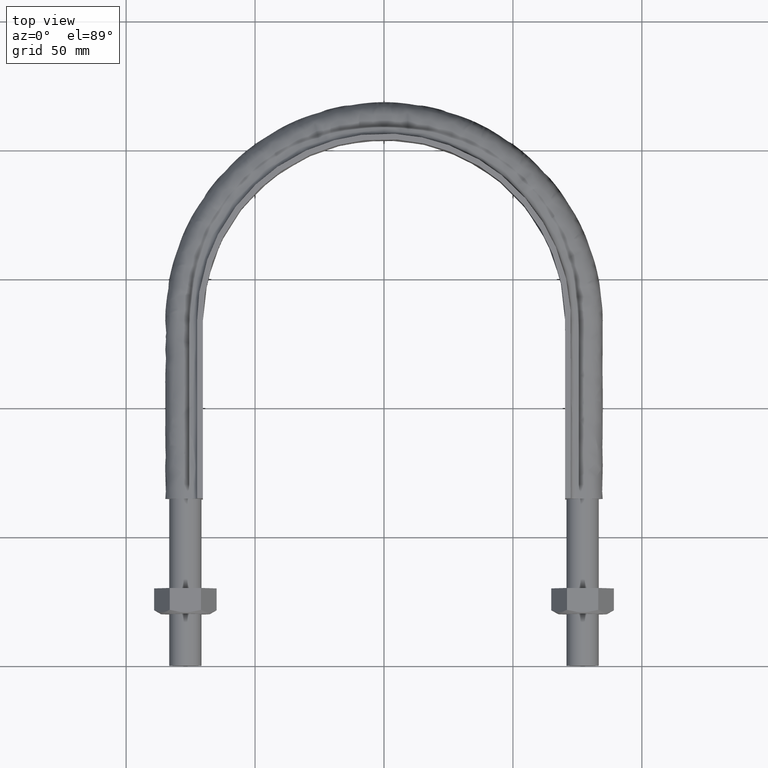
[diagram: clean part render]
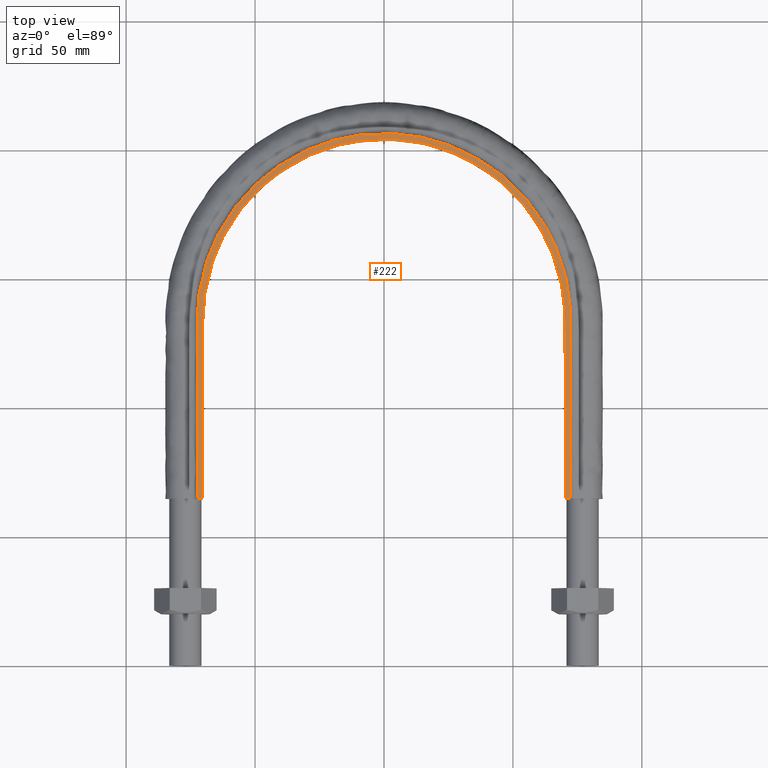
[diagram: same view with one face highlighted and labeled with its STEP entity id]
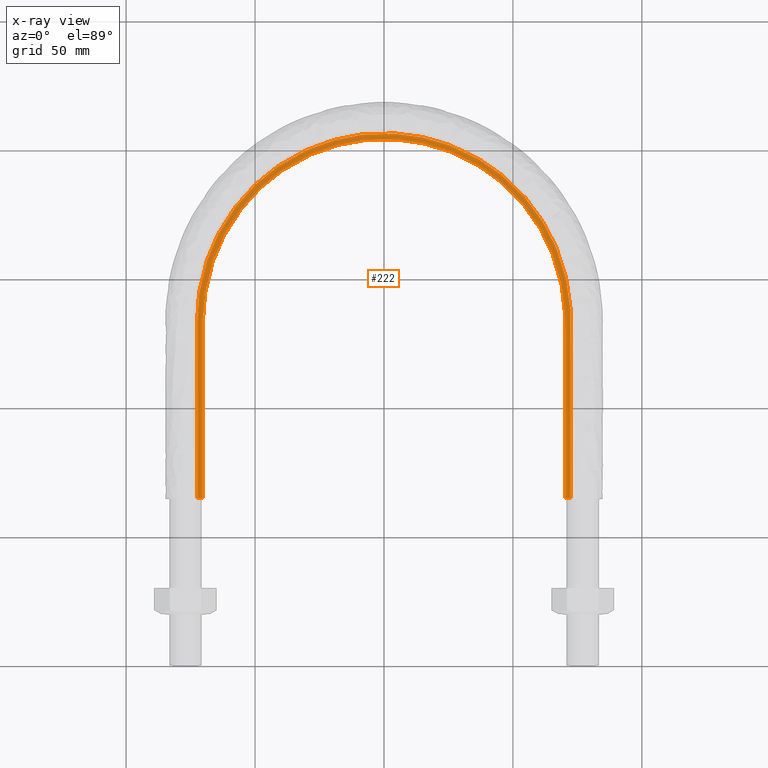
[diagram: x-ray of the same camera — body ghosted, the highlighted face saturated]
A machine part, top view. The second image highlights one B-rep face of the part: STEP entity #222.
The next image is the same camera in x-ray: the body ghosted, the highlighted face saturated — about 0% of this face is hidden behind the body in this view.
In plain terms, the highlighted planar face has unit normal (0, 0, 1).
Its self-contained STEP definition (entity closure, byte-faithful):
#222 = ADVANCED_FACE( '', ( #266 ), #267, .T. );
#266 = FACE_OUTER_BOUND( '', #538, .T. );
#267 = PLANE( '', #539 );
#538 = EDGE_LOOP( '', ( #1327, #1328, #1329, #1330 ) );
#539 = AXIS2_PLACEMENT_3D( '', #1331, #1332, #1333 );
#1327 = ORIENTED_EDGE( '', *, *, #1548, .T. );
#1328 = ORIENTED_EDGE( '', *, *, #1553, .T. );
#1329 = ORIENTED_EDGE( '', *, *, #1556, .T. );
#1330 = ORIENTED_EDGE( '', *, *, #1557, .F. );
#1331 = CARTESIAN_POINT( '', ( 100.000000000000, 264.710000000000, 15.0000000000000 ) );
#1332 = DIRECTION( '', ( 0.000000000000000, 0.000000000000000, 1.00000000000000 ) );
#1333 = DIRECTION( '', ( 1.00000000000000, 0.000000000000000, 0.000000000000000 ) );
#1548 = EDGE_CURVE( '', #1616, #1614, #1617, .T. );
#1553 = EDGE_CURVE( '', #1614, #1625, #1626, .T. );
#1556 = EDGE_CURVE( '', #1625, #1630, #1631, .T. );
#1557 = EDGE_CURVE( '', #1616, #1630, #1632, .T. );
#1614 = VERTEX_POINT( '', #1730 );
#1616 = VERTEX_POINT( '', #1733 );
#1617 = LINE( '', #1734, #1735 );
#1625 = VERTEX_POINT( '', #1794 );
#1626 = B_SPLINE_CURVE_WITH_KNOTS( '', 3, ( #1795, #1796, #1797, #1798, #1799, #1800, #1801, #1802, #1803, #1804, #1805, #1806, #1807, #1808, #1809, #1810 ), .UNSPECIFIED., .F., .F., ( 4, 3, 1, 1, 1, 1, 1, 1, 3, 4 ), ( -9.00000000000000, -8.00000000000000, -7.00000000000000, -6.00000000000000, -5.00000000000000, -4.00000000000000, -3.00000000000000, -2.00000000000000, -1.00000000000000, 0.000000000000000 ), .UNSPECIFIED. );
#1630 = VERTEX_POINT( '', #1830 );
#1631 = LINE( '', #1831, #1832 );
#1632 = B_SPLINE_CURVE_WITH_KNOTS( '', 3, ( #1833, #1834, #1835, #1836, #1837, #1838, #1839, #1840, #1841, #1842, #1843, #1844, #1845, #1846, #1847, #1848 ), .UNSPECIFIED., .F., .F., ( 4, 3, 1, 1, 1, 1, 1, 1, 3, 4 ), ( -9.00000000000000, -8.00000000000000, -7.00000000000000, -6.00000000000000, -5.00000000000000, -4.00000000000000, -3.00000000000000, -2.00000000000000, -1.00000000000000, 0.000000000000000 ), .UNSPECIFIED. );
#1730 = CARTESIAN_POINT( '', ( -70.2500000000000, 64.7100000000000, 15.0000000000000 ) );
#1733 = CARTESIAN_POINT( '', ( -72.4500000000000, 64.7100000000000, 15.0000000000000 ) );
#1734 = CARTESIAN_POINT( '', ( -100.000000000000, 64.7100000000000, 15.0000000000000 ) );
#1735 = VECTOR( '', #2168, 1000.00000000000 );
#1794 = CARTESIAN_POINT( '', ( 70.2500000000000, 64.7100000000000, 15.0000000000000 ) );
#1795 = CARTESIAN_POINT( '', ( -70.2500000000000, 64.7100000000000, 15.0000000000000 ) );
#1796 = CARTESIAN_POINT( '', ( -70.2500000000000, 87.7266666666667, 15.0000000000000 ) );
#1797 = CARTESIAN_POINT( '', ( -70.2500000000000, 110.743333333333, 15.0000000000000 ) );
#1798 = CARTESIAN_POINT( '', ( -70.2500000000000, 133.760000000000, 15.0000000000000 ) );
#1799 = CARTESIAN_POINT( '', ( -70.2500000000000, 144.249418134732, 15.0000000000000 ) );
#1800 = CARTESIAN_POINT( '', ( -65.4537147955432, 165.288971927909, 15.0000000000000 ) );
#1801 = CARTESIAN_POINT( '', ( -45.2953760364684, 190.556467088273, 15.0000000000000 ) );
#1802 = CARTESIAN_POINT( '', ( -16.1657325420394, 204.587129579273, 15.0000000000000 ) );
#1803 = CARTESIAN_POINT( '', ( 16.1657325420395, 204.587129579273, 15.0000000000000 ) );
#1804 = CARTESIAN_POINT( '', ( 45.2953760364684, 190.556467088273, 15.0000000000000 ) );
#1805 = CARTESIAN_POINT( '', ( 65.4537147955432, 165.288971927909, 15.0000000000000 ) );
#1806 = CARTESIAN_POINT( '', ( 70.2500000000000, 144.249418134732, 15.0000000000000 ) );
#1807 = CARTESIAN_POINT( '', ( 70.2500000000000, 133.760000000000, 15.0000000000000 ) );
#1808 = CARTESIAN_POINT( '', ( 70.2500000000000, 110.743333333333, 15.0000000000000 ) );
#1809 = CARTESIAN_POINT( '', ( 70.2500000000000, 87.7266666666667, 15.0000000000000 ) );
#1810 = CARTESIAN_POINT( '', ( 70.2500000000000, 64.7100000000000, 15.0000000000000 ) );
#1830 = CARTESIAN_POINT( '', ( 72.4500000000000, 64.7100000000000, 15.0000000000000 ) );
#1831 = CARTESIAN_POINT( '', ( -100.000000000000, 64.7100000000000, 15.0000000000000 ) );
#1832 = VECTOR( '', #2171, 1000.00000000000 );
#1833 = CARTESIAN_POINT( '', ( -72.4500000000000, 64.7100000000000, 15.0000000000000 ) );
#1834 = CARTESIAN_POINT( '', ( -72.4500000000000, 87.7266666666667, 15.0000000000000 ) );
#1835 = CARTESIAN_POINT( '', ( -72.4500000000000, 110.743333333333, 15.0000000000000 ) );
#1836 = CARTESIAN_POINT( '', ( -72.4500000000000, 133.760000000000, 15.0000000000000 ) );
#1837 = CARTESIAN_POINT( '', ( -72.4500000000000, 144.584175230504, 15.0000000000000 ) );
#1838 = CARTESIAN_POINT( '', ( -67.5035108460798, 166.273453800089, 15.0000000000000 ) );
#1839 = CARTESIAN_POINT( '', ( -46.7138789159022, 192.335910248336, 15.0000000000000 ) );
#1840 = CARTESIAN_POINT( '', ( -16.6719903583026, 206.805050635421, 15.0000000000000 ) );
#1841 = CARTESIAN_POINT( '', ( 16.6719903583027, 206.805050635421, 15.0000000000000 ) );
#1842 = CARTESIAN_POINT( '', ( 46.7138789159023, 192.335910248336, 15.0000000000000 ) );
#1843 = CARTESIAN_POINT( '', ( 67.5035108460798, 166.273453800089, 15.0000000000000 ) );
#1844 = CARTESIAN_POINT( '', ( 72.4500000000000, 144.584175230504, 15.0000000000000 ) );
#1845 = CARTESIAN_POINT( '', ( 72.4500000000000, 133.760000000000, 15.0000000000000 ) );
#1846 = CARTESIAN_POINT( '', ( 72.4500000000000, 110.743333333333, 15.0000000000000 ) );
#1847 = CARTESIAN_POINT( '', ( 72.4500000000000, 87.7266666666667, 15.0000000000000 ) );
#1848 = CARTESIAN_POINT( '', ( 72.4500000000000, 64.7100000000000, 15.0000000000000 ) );
#2168 = DIRECTION( '', ( 1.00000000000000, -1.22460635382238E-016, 0.000000000000000 ) );
#2171 = DIRECTION( '', ( 1.00000000000000, -1.22460635382238E-016, 0.000000000000000 ) );